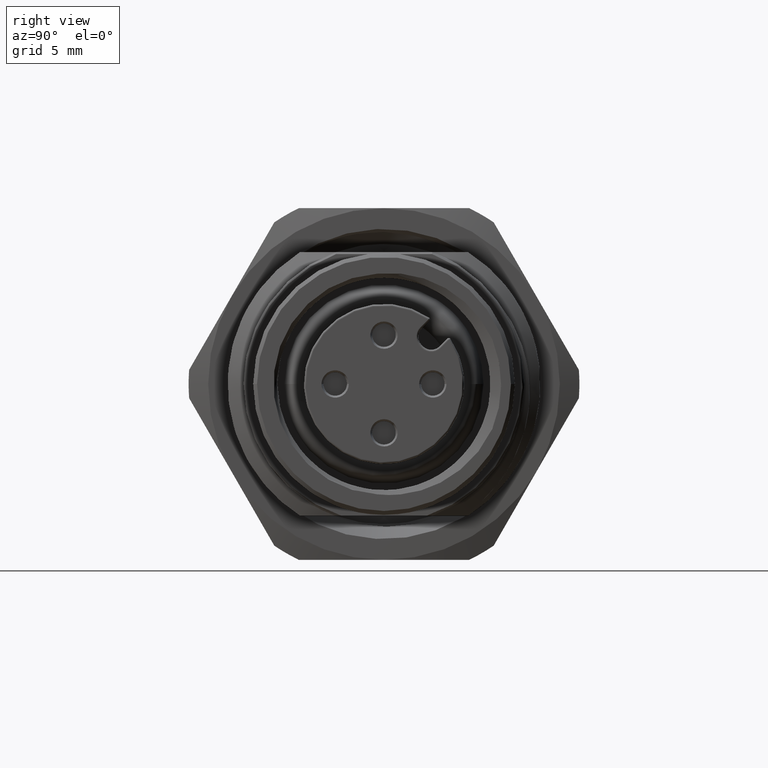
[diagram: clean part render]
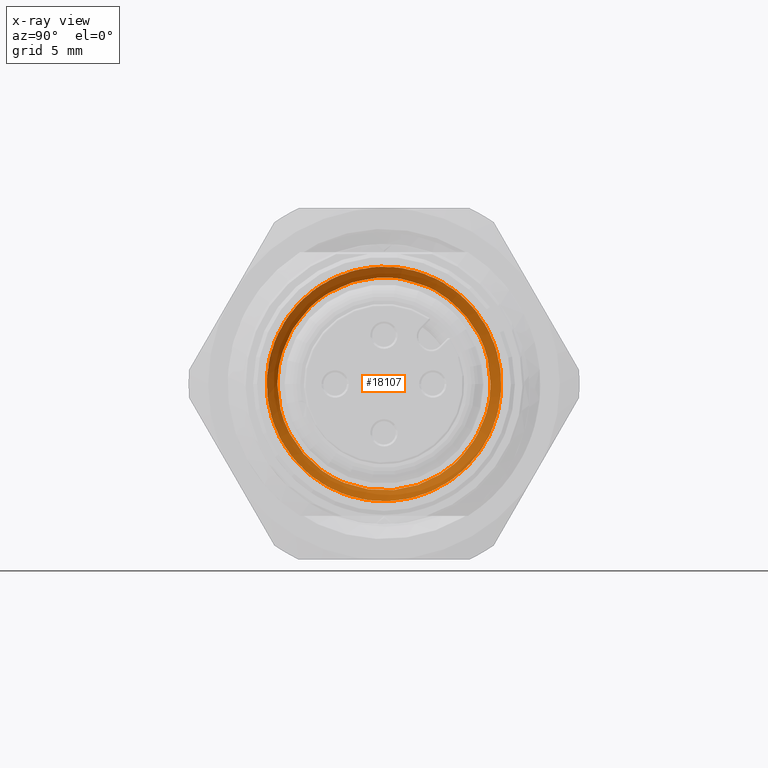
[diagram: x-ray — body ghosted, one internal face saturated and labeled with its STEP entity id]
A machine part, right view, then the same camera in x-ray: the body is ghosted and one INTERNAL B-rep face — a face not visible from any outside direction — is saturated and labeled: STEP entity #18107.
In plain terms, the highlighted face is a freeform B-spline surface patch.
Its self-contained STEP definition (entity closure, byte-faithful):
#5751=CARTESIAN_POINT('',(2.314018473593E-1,4.299110963220E0,3.363460593117E0));
#6500=CARTESIAN_POINT('',(2.314018473593E-1,4.299110963220E0,3.363460593117E0));
#6501=CARTESIAN_POINT('',(2.399415435808E-1,4.113948233641E0,3.600132421433E0));
#6502=CARTESIAN_POINT('',(2.568822415037E-1,3.704433105343E0,4.042842241084E0));
#6503=CARTESIAN_POINT('',(2.832021900221E-1,2.989275876292E0,4.596919117338E0));
#6504=CARTESIAN_POINT('',(3.111253487108E-1,2.192725604946E0,5.025870741599E0));
#6505=CARTESIAN_POINT('',(3.371518437403E-1,1.336512042359E0,5.318003989528E0));
#6506=CARTESIAN_POINT('',(3.617090569657E-1,4.438845492827E-1,
5.465380876023E0));
#6507=CARTESIAN_POINT('',(3.886290644774E-1,-4.607812755540E-1,
5.463982946907E0));
#6508=CARTESIAN_POINT('',(4.162604369995E-1,-1.352989619232E0,
5.313840623553E0));
#6509=CARTESIAN_POINT('',(4.420264436002E-1,-2.208400482440E0,
5.019009486373E0));
#6510=CARTESIAN_POINT('',(4.666955837468E-1,-3.003668170396E0,
4.587530417308E0));
#6511=CARTESIAN_POINT('',(4.941329043843E-1,-3.717122549455E0,
4.031185973253E0));
#6512=CARTESIAN_POINT('',(5.214950369702E-1,-4.329412140562E0,
3.365064993342E0));
#6513=CARTESIAN_POINT('',(5.469437675698E-1,-4.823808253135E0,
2.607356859327E0));
#6514=CARTESIAN_POINT('',(5.717992400231E-1,-5.186871495662E0,
1.778706001205E0));
#6515=CARTESIAN_POINT('',(5.995825331082E-1,-5.408742572223E0,
9.016282632118E-1));
#6516=CARTESIAN_POINT('',(6.176129594944E-1,-5.4585E0,3.005517473396E-1));
#6517=CARTESIAN_POINT('',(6.263232151622E-1,-5.4585E0,4.197741849550E-14));
#6519=CARTESIAN_POINT('',(6.263232151622E-1,-5.4585E0,4.197741849550E-14));
#6520=CARTESIAN_POINT('',(6.350415649384E-1,-5.4585E0,-3.008310386150E-1));
#6521=CARTESIAN_POINT('',(6.518213066995E-1,-5.408645779762E0,
-9.025147996965E-1));
#6522=CARTESIAN_POINT('',(6.770851113987E-1,-5.186338113313E0,
-1.780413512747E0));
#6523=CARTESIAN_POINT('',(7.050728443859E-1,-4.822567283011E0,
-2.609757509389E0));
#6524=CARTESIAN_POINT('',(7.318455214257E-1,-4.327236121665E0,
-3.367942641362E0));
#6525=CARTESIAN_POINT('',(7.567678846666E-1,-3.713854843236E0,
-4.034262380539E0));
#6526=CARTESIAN_POINT('',(7.825356390063E-1,-2.999204079622E0,
-4.590507557990E0));
#6527=CARTESIAN_POINT('',(8.105475477199E-1,-2.202709411462E0,
-5.021562836829E0));
#6528=CARTESIAN_POINT('',(8.370017821161E-1,-1.346089358076E0,
-5.315643731238E0));
#6529=CARTESIAN_POINT('',(8.617285360058E-1,-4.527892133326E-1,
-5.464700257605E0));
#6530=CARTESIAN_POINT('',(8.880650947182E-1,4.527814001953E-1,
-5.464701536691E0));
#6531=CARTESIAN_POINT('',(9.159682444173E-1,1.346095411606E0,
-5.315642629333E0));
#6532=CARTESIAN_POINT('',(9.421033704828E-1,2.202714763404E0,
-5.021560456791E0));
#6533=CARTESIAN_POINT('',(9.667340234165E-1,2.999209336658E0,
-4.590503828165E0));
#6534=CARTESIAN_POINT('',(9.936403384284E-1,3.713858761136E0,
-4.034259884743E0));
#6535=CARTESIAN_POINT('',(1.021336611502E0,4.327255284938E0,-3.367919446456E0));
#6536=CARTESIAN_POINT('',(1.047153465017E0,4.822576351452E0,-2.609737612863E0));
#6537=CARTESIAN_POINT('',(1.071816973414E0,5.186335830157E0,-1.780418070597E0));
#6538=CARTESIAN_POINT('',(1.099221454757E0,5.408642926617E0,
-9.025249629757E-1));
#6539=CARTESIAN_POINT('',(1.117512057230E0,5.4585E0,-3.008533037392E-1));
#6540=CARTESIAN_POINT('',(1.126326454072E0,5.4585E0,-8.638553125589E-14));
#6542=CARTESIAN_POINT('',(1.126326454072E0,5.4585E0,-8.638553125589E-14));
#6543=CARTESIAN_POINT('',(1.135140164458E0,5.4585E0,3.008298736200E-1));
#6544=CARTESIAN_POINT('',(1.152154262757E0,5.408646565921E0,9.025056347282E-1));
#6545=CARTESIAN_POINT('',(1.177005608450E0,5.186344621432E0,1.780391845279E0));
#6546=CARTESIAN_POINT('',(1.204789229972E0,4.822584943173E0,2.609723776864E0));
#6547=CARTESIAN_POINT('',(1.231903397534E0,4.327262802962E0,3.367907370412E0));
#6548=CARTESIAN_POINT('',(1.257110534076E0,3.713895893231E0,4.034224638803E0));
#6549=CARTESIAN_POINT('',(1.282335371286E0,2.999239513092E0,4.590485452862E0));
#6550=CARTESIAN_POINT('',(1.310317505703E0,2.202741542077E0,5.021548584082E0));
#6551=CARTESIAN_POINT('',(1.337116051631E0,1.346134080990E0,5.315631309767E0));
#6552=CARTESIAN_POINT('',(1.362056513351E0,4.528446397938E-1,5.464696721412E0));
#6553=CARTESIAN_POINT('',(1.387780950051E0,-4.527639221013E-1,
5.464704577296E0));
#6554=CARTESIAN_POINT('',(1.415796540169E0,-1.346079283480E0,5.315645724543E0));
#6555=CARTESIAN_POINT('',(1.442275343946E0,-2.202680041766E0,5.021574590606E0));
#6556=CARTESIAN_POINT('',(1.467014444405E0,-2.999177653180E0,4.590526092169E0));
#6557=CARTESIAN_POINT('',(1.493307607540E0,-3.713855432449E0,4.034264355798E0));
#6558=CARTESIAN_POINT('',(1.521223802805E0,-4.327244703195E0,3.367930464150E0));
#6559=CARTESIAN_POINT('',(1.547380844906E0,-4.822557691971E0,2.609771705524E0));
#6560=CARTESIAN_POINT('',(1.572016445919E0,-5.186332404001E0,1.780434490598E0));
#6561=CARTESIAN_POINT('',(1.598869320739E0,-5.408645927263E0,
9.025107254377E-1));
#6562=CARTESIAN_POINT('',(1.617371235347E0,-5.4585E0,3.008473074785E-1));
#6563=CARTESIAN_POINT('',(1.626278846316E0,-5.4585E0,1.730135618651E-13));
#6565=CARTESIAN_POINT('',(1.626278846316E0,-5.4585E0,1.730135618651E-13));
#6566=CARTESIAN_POINT('',(1.635185827192E0,-5.4585E0,-3.008260266503E-1));
#6567=CARTESIAN_POINT('',(1.652440027080E0,-5.408648706127E0,
-9.024930999653E-1));
#6568=CARTESIAN_POINT('',(1.677083940846E0,-5.186345552961E0,
-1.780391013172E0));
#6569=CARTESIAN_POINT('',(1.704459351017E0,-4.822584148334E0,
-2.609724866646E0));
#6570=CARTESIAN_POINT('',(1.731903330144E0,-4.327266273076E0,
-3.367901584693E0));
#6571=CARTESIAN_POINT('',(1.757434448730E0,-3.713907768072E0,
-4.034214621364E0));
#6572=CARTESIAN_POINT('',(1.782269748999E0,-2.999230227239E0,
-4.590492934390E0));
#6573=CARTESIAN_POINT('',(1.810030942195E0,-2.202726208146E0,
-5.021555203353E0));
#6574=CARTESIAN_POINT('',(1.837170985558E0,-1.346127310887E0,
-5.315631299445E0));
#6575=CARTESIAN_POINT('',(1.862399837904E0,-4.528611912973E-1,
-5.464696692976E0));
#6576=CARTESIAN_POINT('',(1.887592006125E0,4.528264672293E-1,
-5.464704959019E0));
#6577=CARTESIAN_POINT('',(1.915567926926E0,1.346226801649E0,-5.315612644214E0));
#6578=CARTESIAN_POINT('',(1.942392612240E0,2.202875649209E0,-5.021491722145E0));
#6579=CARTESIAN_POINT('',(1.967352944964E0,2.999384843104E0,-4.590391823448E0));
#6580=CARTESIAN_POINT('',(1.993036550243E0,3.714028304401E0,-4.034102057350E0));
#6581=CARTESIAN_POINT('',(2.021053069219E0,4.327343479303E0,-3.367795652634E0));
#6582=CARTESIAN_POINT('',(2.047551725395E0,4.822599637929E0,-2.609689577100E0));
#6583=CARTESIAN_POINT('',(2.072306298413E0,5.186364662436E0,-1.780345621371E0));
#6584=CARTESIAN_POINT('',(2.098539840688E0,5.408661787367E0,
-9.024040573192E-1));
#6585=CARTESIAN_POINT('',(2.117190756462E0,5.4585E0,-3.008047722762E-1));
#6586=CARTESIAN_POINT('',(2.126183223101E0,5.4585E0,-3.077446286570E-14));
#6588=CARTESIAN_POINT('',(2.126183223101E0,5.4585E0,-3.077446286570E-14));
#6589=CARTESIAN_POINT('',(2.135176310042E0,5.4585E0,3.008255218801E-1));
#6590=CARTESIAN_POINT('',(2.152667283535E0,5.408649486516E0,9.024879017912E-1));
#6591=CARTESIAN_POINT('',(2.177289601144E0,5.186346076165E0,1.780390459307E0));
#6592=CARTESIAN_POINT('',(2.204112231468E0,4.822583683401E0,2.609725264893E0));
#6593=CARTESIAN_POINT('',(2.231843791560E0,4.327269763217E0,3.367896565861E0));
#6594=CARTESIAN_POINT('',(2.257711298809E0,3.713911327632E0,4.034212384985E0));
#6595=CARTESIAN_POINT('',(2.282360603867E0,2.999218840785E0,4.590501060348E0));
#6596=CARTESIAN_POINT('',(2.309698557222E0,2.202715836678E0,5.021559144079E0));
#6597=CARTESIAN_POINT('',(2.337167051610E0,1.346124709389E0,5.315631744334E0));
#6598=CARTESIAN_POINT('',(2.362721631833E0,4.528533706512E-1,5.464698214897E0));
#6599=CARTESIAN_POINT('',(2.387537811518E0,-4.528437314308E-1,
5.464702664970E0));
#6600=CARTESIAN_POINT('',(2.415276302054E0,-1.346207659638E0,5.315615514137E0));
#6601=CARTESIAN_POINT('',(2.442442009132E0,-2.202840179524E0,5.021506538537E0));
#6602=CARTESIAN_POINT('',(2.467695279057E0,-2.999353537300E0,4.590414058550E0));
#6603=CARTESIAN_POINT('',(2.492853969839E0,-3.714027177085E0,4.034104033612E0));
#6604=CARTESIAN_POINT('',(2.520815259335E0,-4.327338577820E0,3.367802998370E0));
#6605=CARTESIAN_POINT('',(2.547659195168E0,-4.822612638057E0,2.609668154282E0));
#6606=CARTESIAN_POINT('',(2.572640595207E0,-5.186368438311E0,1.780329951297E0));
#6607=CARTESIAN_POINT('',(2.598267303288E0,-5.408659835234E0,
9.024119773690E-1));
#6608=CARTESIAN_POINT('',(2.616978460312E0,-5.4585E0,3.008089518522E-1));
#6609=CARTESIAN_POINT('',(2.626044792221E0,-5.4585E0,6.702876305105E-14));
#6611=CARTESIAN_POINT('',(2.626044792221E0,-5.4585E0,6.702876305105E-14));
#6612=CARTESIAN_POINT('',(2.635111724980E0,-5.4585E0,-3.008288872806E-1));
#6613=CARTESIAN_POINT('',(2.652830864234E0,-5.408648902160E0,
-9.024914030765E-1));
#6614=CARTESIAN_POINT('',(2.677581223294E0,-5.186344412082E0,
-1.780395386736E0));
#6615=CARTESIAN_POINT('',(2.703785178350E0,-4.822582817690E0,
-2.609725668126E0));
#6616=CARTESIAN_POINT('',(2.731721898733E0,-4.327274522635E0,
-3.367890704622E0));
#6617=CARTESIAN_POINT('',(2.757931771248E0,-3.713906758434E0,
-4.034217949088E0));
#6618=CARTESIAN_POINT('',(2.782575173801E0,-2.999205036527E0,
-4.590509817499E0));
#6619=CARTESIAN_POINT('',(2.809351393923E0,-2.202712977313E0,
-5.021559480997E0));
#6620=CARTESIAN_POINT('',(2.837103093801E0,-1.346127415490E0,
-5.315631524792E0));
#6621=CARTESIAN_POINT('',(2.862994975190E0,-4.528390234448E-1,
-5.464700372366E0));
#6622=CARTESIAN_POINT('',(2.887639151047E0,4.528603582890E-1,
-5.464700163742E0));
#6623=CARTESIAN_POINT('',(2.914940908647E0,1.346195097570E0,-5.315617702262E0));
#6624=CARTESIAN_POINT('',(2.942433174173E0,2.202835105870E0,-5.021510086966E0));
#6625=CARTESIAN_POINT('',(2.968013796421E0,2.999373851465E0,-4.590403178862E0));
#6626=CARTESIAN_POINT('',(2.992811626549E0,3.714066887226E0,-4.034068279685E0));
#6627=CARTESIAN_POINT('',(3.020524043572E0,4.327370847175E0,-3.367762243795E0));
#6628=CARTESIAN_POINT('',(3.047712996027E0,4.822647840138E0,-2.609604814929E0));
#6629=CARTESIAN_POINT('',(3.072989594689E0,5.186385861411E0,-1.780272015871E0));
#6630=CARTESIAN_POINT('',(3.098099070280E0,5.408659344853E0,
-9.024029081982E-1));
#6631=CARTESIAN_POINT('',(3.116739783960E0,5.4585E0,-3.008059781646E-1));
#6632=CARTESIAN_POINT('',(3.125858159524E0,5.4585E0,-6.482485997126E-14));
#6634=CARTESIAN_POINT('',(3.125858159524E0,5.4585E0,-6.482485997126E-14));
#6635=CARTESIAN_POINT('',(3.134963310620E0,5.4585E0,3.003697163498E-1));
#6636=CARTESIAN_POINT('',(3.152862311457E0,5.408737009300E0,9.010938493409E-1));
#6637=CARTESIAN_POINT('',(3.177793189876E0,5.187569565640E0,1.776777093264E0));
#6638=CARTESIAN_POINT('',(3.203403073856E0,4.824313735286E0,2.606001687221E0));
#6639=CARTESIAN_POINT('',(3.231280940171E0,4.333422263341E0,3.359956953074E0));
#6640=CARTESIAN_POINT('',(3.258184004371E0,3.714764994630E0,4.034705558905E0));
#6641=CARTESIAN_POINT('',(3.283363285904E0,2.983840736264E0,4.601816243161E0));
#6642=CARTESIAN_POINT('',(3.310193265970E0,2.172824334952E0,5.034753676696E0));
#6643=CARTESIAN_POINT('',(3.328047861566E0,1.603186330449E0,5.226506396009E0));
#6644=CARTESIAN_POINT('',(3.336882138739E0,1.312205076684E0,5.298427778212E0));
#6646=CARTESIAN_POINT('',(3.649844416177E0,1.443597531679E0,5.823139669250E0));
#6647=CARTESIAN_POINT('',(3.645515076610E0,1.602119362358E0,5.784053877768E0));
#6648=CARTESIAN_POINT('',(3.636444652774E0,1.915852956893E0,5.692441405176E0));
#6649=CARTESIAN_POINT('',(3.623028656873E0,2.373855579219E0,5.517607207459E0));
#6650=CARTESIAN_POINT('',(3.609727676520E0,2.815995687721E0,5.305721866048E0));
#6651=CARTESIAN_POINT('',(3.597082965221E0,3.239253033133E0,5.058245088020E0));
#6652=CARTESIAN_POINT('',(3.584601781363E0,3.640799072163E0,4.776943034761E0));
#6653=CARTESIAN_POINT('',(3.572045615719E0,4.018116713971E0,4.463934170881E0));
#6654=CARTESIAN_POINT('',(3.559169125787E0,4.368714757875E0,4.121294708026E0));
#6655=CARTESIAN_POINT('',(3.545977719141E0,4.690385936712E0,3.751371999042E0));
#6656=CARTESIAN_POINT('',(3.532498792723E0,4.980901687420E0,3.356499579328E0));
#6657=CARTESIAN_POINT('',(3.518994132026E0,5.238331338400E0,2.939269817220E0));
#6658=CARTESIAN_POINT('',(3.505791777786E0,5.460675419903E0,2.502297058061E0));
#6659=CARTESIAN_POINT('',(3.493201137227E0,5.646379299168E0,2.048528783965E0));
#6660=CARTESIAN_POINT('',(3.480695448506E0,5.794336695809E0,1.581117525134E0));
#6661=CARTESIAN_POINT('',(3.468077361012E0,5.903803571349E0,1.103249068824E0));
#6662=CARTESIAN_POINT('',(3.455126815661E0,5.974053880410E0,6.180835294852E-1));
#6663=CARTESIAN_POINT('',(3.441877146624E0,6.004741660849E0,1.288208799460E-1));
#6664=CARTESIAN_POINT('',(3.428387059358E0,5.995498744640E0,
-3.613269601963E-1));
#6665=CARTESIAN_POINT('',(3.414931473377E0,5.946356324391E0,
-8.491235753994E-1));
#6666=CARTESIAN_POINT('',(3.401901174782E0,5.857283960349E0,-1.331258127574E0));
#6667=CARTESIAN_POINT('',(3.389383128748E0,5.728964210174E0,-1.804461017647E0));
#6668=CARTESIAN_POINT('',(3.376868689964E0,5.562425085141E0,-2.265570472765E0));
#6669=CARTESIAN_POINT('',(3.364188830082E0,5.358989523642E0,-2.711607631730E0));
#6670=CARTESIAN_POINT('',(3.351156095188E0,5.119985355855E0,-3.139619310536E0));
#6671=CARTESIAN_POINT('',(3.337834878251E0,4.847061153401E0,-3.546845470555E0));
#6672=CARTESIAN_POINT('',(3.324318440880E0,4.541864920155E0,-3.930498608898E0));
#6673=CARTESIAN_POINT('',(3.310908914072E0,4.206374967181E0,-4.288010616422E0));
#6674=CARTESIAN_POINT('',(3.298029978754E0,3.842580426151E0,-4.616711304543E0));
#6675=CARTESIAN_POINT('',(3.285543959387E0,3.453097373758E0,-4.914510588184E0));
#6676=CARTESIAN_POINT('',(3.273002945212E0,3.040633171472E0,-5.179509361857E0));
#6677=CARTESIAN_POINT('',(3.260253783132E0,2.608034662952E0,-5.410137728072E0));
#6678=CARTESIAN_POINT('',(3.247143657445E0,2.158140811947E0,-5.604845419288E0));
#6679=CARTESIAN_POINT('',(3.233766172762E0,1.693927948826E0,-5.762421506962E0));
#6680=CARTESIAN_POINT('',(3.220243053649E0,1.218399784670E0,-5.881641042601E0));
#6681=CARTESIAN_POINT('',(3.206918818046E0,7.346877542265E-1,
-5.961635079077E0));
#6682=CARTESIAN_POINT('',(3.194179884423E0,2.460152957695E-1,
-6.001516741469E0));
#6683=CARTESIAN_POINT('',(3.181707976361E0,-2.442653936162E-1,
-6.001315777877E0));
#6684=CARTESIAN_POINT('',(3.169129551605E0,-7.328657217978E-1,
-5.961133706520E0));
#6685=CARTESIAN_POINT('',(3.156305175233E0,-1.216576063105E0,
-5.881438615245E0));
#6686=CARTESIAN_POINT('',(3.143118472085E0,-1.692200084502E0,
-5.762709240320E0));
#6687=CARTESIAN_POINT('',(3.129693576257E0,-2.156631882112E0,
-5.605768138097E0));
#6688=CARTESIAN_POINT('',(3.116174883382E0,-2.606734531621E0,
-5.411462782142E0));
#6689=CARTESIAN_POINT('',(3.102971878859E0,-3.039465667909E0,
-5.180968950583E0));
#6690=CARTESIAN_POINT('',(3.090339362048E0,-3.451752655522E0,
-4.915622475540E0));
#6691=CARTESIAN_POINT('',(3.077867364714E0,-3.840986140290E0,
-4.617518073888E0));
#6692=CARTESIAN_POINT('',(3.065240437315E0,-4.204610177993E0,
-4.288707417688E0));
#6693=CARTESIAN_POINT('',(3.052337634976E0,-4.540352419663E0,
-3.931494570299E0));
#6694=CARTESIAN_POINT('',(3.039078365951E0,-4.845956665883E0,
-3.548191561817E0));
#6695=CARTESIAN_POINT('',(3.025617283498E0,-5.119434681473E0,
-3.141323601371E0));
#6696=CARTESIAN_POINT('',(3.012120070923E0,-5.358802932360E0,
-2.713471860984E0));
#6697=CARTESIAN_POINT('',(2.999064553601E0,-5.562311685074E0,
-2.267407011040E0));
#6698=CARTESIAN_POINT('',(2.986503593985E0,-5.728442454768E0,
-1.806120147814E0));
#6699=CARTESIAN_POINT('',(2.974019454311E0,-5.856399361166E0,
-1.332844412137E0));
#6700=CARTESIAN_POINT('',(2.961334196216E0,-5.945389148205E0,
-8.507510460698E-1));
#6701=CARTESIAN_POINT('',(2.948351232805E0,-5.994985651782E0,
-3.630402827918E-1));
#6702=CARTESIAN_POINT('',(2.935025343253E0,-6.004789865332E0,
1.270823939565E-1));
#6703=CARTESIAN_POINT('',(2.921539517888E0,-5.974731038839E0,
6.164017243940E-1));
#6704=CARTESIAN_POINT('',(2.908087627482E0,-5.904795068275E0,1.101655135665E0));
#6705=CARTESIAN_POINT('',(2.895187526788E0,-5.795246259198E0,1.579559909763E0));
#6706=CARTESIAN_POINT('',(2.882669718207E0,-5.646833612697E0,2.046842311060E0));
#6707=CARTESIAN_POINT('',(2.870161603180E0,-5.460851744932E0,2.500458641694E0));
#6708=CARTESIAN_POINT('',(2.857410257931E0,-5.238591087493E0,2.937411912610E0));
#6709=CARTESIAN_POINT('',(2.844346906535E0,-4.981631791719E0,3.354895013449E0));
#6710=CARTESIAN_POINT('',(2.830962353763E0,-4.691595293774E0,3.750113011557E0));
#6711=CARTESIAN_POINT('',(2.817463292601E0,-4.370361062796E0,4.120452750772E0));
#6712=CARTESIAN_POINT('',(2.804087074029E0,-4.019894561913E0,4.463297785296E0));
#6713=CARTESIAN_POINT('',(2.791331540721E0,-3.642412433328E0,4.776192566647E0));
#6714=CARTESIAN_POINT('',(2.778834879847E0,-3.240577927588E0,5.057086740138E0));
#6715=CARTESIAN_POINT('',(2.766291026228E0,-2.817226524222E0,5.304321294579E0));
#6716=CARTESIAN_POINT('',(2.753467869427E0,-2.375199488409E0,5.516301132256E0));
#6717=CARTESIAN_POINT('',(2.740325446919E0,-1.917440840460E0,5.691734261823E0));
#6718=CARTESIAN_POINT('',(2.726892264259E0,-1.446934255619E0,5.829374650986E0));
#6719=CARTESIAN_POINT('',(2.713391770915E0,-9.667572229475E-1,
5.928267704147E0));
#6720=CARTESIAN_POINT('',(2.700127796248E0,-4.800663214371E-1,
5.987500408822E0));
#6721=CARTESIAN_POINT('',(2.687487719868E0,9.865715144094E-3,6.006521068512E0));
#6722=CARTESIAN_POINT('',(2.674996702286E0,4.996815624363E-1,5.985398291471E0));
#6723=CARTESIAN_POINT('',(2.662405542368E0,9.861344318334E-1,5.924493679984E0));
#6724=CARTESIAN_POINT('',(2.649506844600E0,1.466002541515E0,5.824263352125E0));
#6725=CARTESIAN_POINT('',(2.636288399491E0,1.936160828682E0,5.685441864471E0));
#6726=CARTESIAN_POINT('',(2.622817821825E0,2.393476468255E0,5.508842266797E0));
#6727=CARTESIAN_POINT('',(2.609330885279E0,2.834914889304E0,5.295559562104E0));
#6728=CARTESIAN_POINT('',(2.596210638900E0,3.257386812210E0,5.046762341030E0));
#6729=CARTESIAN_POINT('',(2.583649791177E0,3.657999838650E0,4.764094497360E0));
#6730=CARTESIAN_POINT('',(2.571152474846E0,4.034155188469E0,4.449664284252E0));
#6731=CARTESIAN_POINT('',(2.558503478992E0,4.383482423929E0,4.105700825727E0));
#6732=CARTESIAN_POINT('',(2.545527245499E0,4.703698808310E0,3.734516170429E0));
#6733=CARTESIAN_POINT('',(2.532237865454E0,4.992749188506E0,3.338572454216E0));
#6734=CARTESIAN_POINT('',(2.518741390524E0,5.248628908076E0,2.920415632880E0));
#6735=CARTESIAN_POINT('',(2.505289555603E0,5.469571839955E0,2.482751876114E0));
#6736=CARTESIAN_POINT('',(2.492326661103E0,5.653807226514E0,2.028390363481E0));
#6737=CARTESIAN_POINT('',(2.479814464557E0,5.800147643306E0,1.560446681282E0));
#6738=CARTESIAN_POINT('',(2.467299131749E0,5.907805889766E0,1.082155310921E0));
#6739=CARTESIAN_POINT('',(2.454583750885E0,5.976233135285E0,5.967142186067E-1));
#6740=CARTESIAN_POINT('',(2.441529483264E0,6.005013327645E0,1.073408575394E-1));
#6741=CARTESIAN_POINT('',(2.428176363016E0,5.993982063333E0,
-3.827632256352E-1));
#6742=CARTESIAN_POINT('',(2.414665650305E0,5.943086186213E0,
-8.703538436008E-1));
#6743=CARTESIAN_POINT('',(2.401277153149E0,5.852538750810E0,-1.352198684848E0));
#6744=CARTESIAN_POINT('',(2.388466571605E0,5.722650200453E0,-1.824976060897E0));
#6745=CARTESIAN_POINT('',(2.375978921884E0,5.554480888838E0,-2.285518903024E0));
#6746=CARTESIAN_POINT('',(2.363433929889E0,5.349338873797E0,-2.730786970657E0));
#6747=CARTESIAN_POINT('',(2.350645675334E0,5.108711278297E0,-3.157904259596E0));
#6748=CARTESIAN_POINT('',(2.337514364085E0,4.834212132062E0,-3.564061610471E0));
#6749=CARTESIAN_POINT('',(2.324106793389E0,4.527632220882E0,-3.946599678927E0));
#6750=CARTESIAN_POINT('',(2.310593634253E0,4.190899684394E0,-4.302903709833E0));
#6751=CARTESIAN_POINT('',(2.297303308158E0,3.826124208029E0,-4.630500487902E0));
#6752=CARTESIAN_POINT('',(2.284621308157E0,3.435618667522E0,-4.926971065400E0));
#6753=CARTESIAN_POINT('',(2.272140678943E0,3.022191492158E0,-5.190508607875E0));
#6754=CARTESIAN_POINT('',(2.259554502675E0,2.588700999268E0,-5.419478170051E0));
#6755=CARTESIAN_POINT('',(2.246688937673E0,2.138061604374E0,-5.612483596551E0));
#6756=CARTESIAN_POINT('',(2.233483183980E0,1.673255161643E0,-5.768267192254E0));
#6757=CARTESIAN_POINT('',(2.220032078244E0,1.197311898312E0,-5.885775761440E0));
#6758=CARTESIAN_POINT('',(2.206530036924E0,7.133557919602E-1,
-5.964102398330E0));
#6759=CARTESIAN_POINT('',(2.193372958158E0,2.245693796970E-1,
-6.002510957556E0));
#6760=CARTESIAN_POINT('',(2.180783392033E0,-2.657192639429E-1,
-6.000593160014E0));
#6761=CARTESIAN_POINT('',(2.168297238311E0,-7.541941640338E-1,
-5.958642009928E0));
#6762=CARTESIAN_POINT('',(2.155658974392E0,-1.237601861167E0,
-5.877079455409E0));
#6763=CARTESIAN_POINT('',(2.142713528933E0,-1.712780497296E0,
-5.756542496342E0));
#6764=CARTESIAN_POINT('',(2.129437883137E0,-2.176597745417E0,
-5.597835041417E0));
#6765=CARTESIAN_POINT('',(2.115954595345E0,-2.625994597642E0,
-5.401934220463E0));
#6766=CARTESIAN_POINT('',(2.102483275380E0,-3.057933785762E0,
-5.170018547886E0));
#6767=CARTESIAN_POINT('',(2.089478585790E0,-3.469404846165E0,
-4.903402624751E0));
#6768=CARTESIAN_POINT('',(2.076949031280E0,-3.857584529596E0,
-4.603905655596E0));
#6769=CARTESIAN_POINT('',(2.064445544849E0,-4.220018000555E0,
-4.273749091286E0));
#6770=CARTESIAN_POINT('',(2.051746100608E0,-4.554380211427E0,
-3.915235326358E0));
#6771=CARTESIAN_POINT('',(2.038719761312E0,-4.858530257162E0,
-3.530768892484E0));
#6772=CARTESIAN_POINT('',(2.025380847769E0,-5.130462891684E0,
-3.122885344737E0));
#6773=CARTESIAN_POINT('',(2.011876931706E0,-5.368316541071E0,
-2.694206528363E0));
#6774=CARTESIAN_POINT('',(1.998462618642E0,-5.570385800562E0,
-2.247516134236E0));
#6775=CARTESIAN_POINT('',(1.985610851931E0,-5.735050399062E0,
-1.785692374655E0));
#6776=CARTESIAN_POINT('',(1.973115293745E0,-5.861303675679E0,
-1.311945553447E0));
#6777=CARTESIAN_POINT('',(1.960582757950E0,-5.948507785737E0,
-8.295030736084E-1));
#6778=CARTESIAN_POINT('',(1.947815065874E0,-5.996216134501E0,
-3.415999939709E-1));
#6779=CARTESIAN_POINT('',(1.934708333564E0,-6.004160615624E0,
1.485604587277E-1));
#6780=CARTESIAN_POINT('',(1.921314851144E0,-5.972280301054E0,
6.377462084471E-1));
#6781=CARTESIAN_POINT('',(1.907802025284E0,-5.900664544067E0,1.122738101386E0));
#6782=CARTESIAN_POINT('',(1.894477616737E0,-5.789634329458E0,1.600277948400E0));
#6783=CARTESIAN_POINT('',(1.881760631912E0,-5.639673310011E0,2.067084099050E0));
#6784=CARTESIAN_POINT('',(1.869279580982E0,-5.452037109361E0,2.520032351440E0));
#6785=CARTESIAN_POINT('',(1.856706407348E0,-5.228128119355E0,2.956167808714E0));
#6786=CARTESIAN_POINT('',(1.843865438049E0,-4.969555134287E0,3.372654901644E0));
#6787=CARTESIAN_POINT('',(1.830680379144E0,-4.678024498866E0,3.766774035890E0));
#6788=CARTESIAN_POINT('',(1.817242900033E0,-4.355444356019E0,4.135914398062E0));
#6789=CARTESIAN_POINT('',(1.803733694497E0,-4.003828329191E0,4.477556041800E0));
#6790=CARTESIAN_POINT('',(1.790536063731E0,-3.625398199584E0,4.789276534718E0));
#6791=CARTESIAN_POINT('',(1.777919589762E0,-3.222590186407E0,5.068811679725E0));
#6792=CARTESIAN_POINT('',(1.765439488892E0,-2.798323832633E0,5.314496721139E0));
#6793=CARTESIAN_POINT('',(1.752814454702E0,-2.355478149077E0,5.524809026082E0));
#6794=CARTESIAN_POINT('',(1.739897105027E0,-1.897047223384E0,5.698473630368E0));
#6795=CARTESIAN_POINT('',(1.726637671993E0,-1.426026479189E0,5.834341127777E0));
#6796=CARTESIAN_POINT('',(1.713167461080E0,-9.455167660947E-1,
5.931486892057E0));
#6797=CARTESIAN_POINT('',(1.699679482314E0,-4.586495360150E-1,
5.989111718612E0));
#6798=CARTESIAN_POINT('',(1.686633312668E0,3.132866070508E-2,6.006609456187E0));
#6799=CARTESIAN_POINT('',(1.674083065839E0,5.210922584494E-1,5.983774620885E0));
#6800=CARTESIAN_POINT('',(1.661592053183E0,1.007327702382E0,5.921068580362E0));
#6801=CARTESIAN_POINT('',(1.648905495338E0,1.486828047260E0,5.819002799425E0));
#6802=CARTESIAN_POINT('',(1.635910261008E0,1.956445005525E0,5.678375786056E0));
#6803=CARTESIAN_POINT('',(1.622582490099E0,2.413093705603E0,5.500067477137E0));
#6804=CARTESIAN_POINT('',(1.609091002416E0,2.853743798980E0,5.285219669945E0));
#6805=CARTESIAN_POINT('',(1.595648575756E0,3.275405786421E0,5.035081307567E0));
#6806=CARTESIAN_POINT('',(1.582759964712E0,3.675113413432E0,4.751140063884E0));
#6807=CARTESIAN_POINT('',(1.570248038532E0,4.050166726430E0,4.435357033890E0));
#6808=CARTESIAN_POINT('',(1.557734310792E0,4.398216263048E0,4.090085256952E0));
#6809=CARTESIAN_POINT('',(1.544978607747E0,4.717015378786E0,3.717660785002E0));
#6810=CARTESIAN_POINT('',(1.531905470751E0,5.004545279943E0,3.320620113368E0));
#6811=CARTESIAN_POINT('',(1.518517503836E0,5.258867368137E0,2.901520674654E0));
#6812=CARTESIAN_POINT('',(1.505016342502E0,5.478260918897E0,2.463109156624E0));
#6813=CARTESIAN_POINT('',(1.491650456635E0,5.661076949534E0,2.008187320993E0));
#6814=CARTESIAN_POINT('',(1.478906812809E0,5.805879411720E0,1.539761420257E0));
#6815=CARTESIAN_POINT('',(1.466411821496E0,5.911814433281E0,1.061060067257E0));
#6816=CARTESIAN_POINT('',(1.453863664486E0,5.978419542790E0,5.753552322332E-1));
#6817=CARTESIAN_POINT('',(1.441033261834E0,6.005312455823E0,8.586052121787E-2));
#6818=CARTESIAN_POINT('',(1.427883706858E0,5.992420438411E0,
-4.041886776036E-1));
#6819=CARTESIAN_POINT('',(1.414445725006E0,5.939729445697E0,
-8.915803508289E-1));
#6820=CARTESIAN_POINT('',(1.400946791219E0,5.847538082360E0,-1.373084196834E0));
#6821=CARTESIAN_POINT('',(1.387694324090E0,5.716196686042E0,-1.845452637545E0));
#6822=CARTESIAN_POINT('',(1.375065036262E0,5.546468219482E0,-2.305432978075E0));
#6823=CARTESIAN_POINT('',(1.362572028073E0,5.339686671620E0,-2.749968451437E0));
#6824=CARTESIAN_POINT('',(1.349977918066E0,5.097443775526E0,-3.176182409381E0));
#6825=CARTESIAN_POINT('',(1.337069273583E0,4.821369092064E0,-3.581283926036E0));
#6826=CARTESIAN_POINT('',(1.323846535982E0,4.513359183093E0,-3.962656409256E0));
#6827=CARTESIAN_POINT('',(1.310369827804E0,4.175334667241E0,-4.317719891799E0));
#6828=CARTESIAN_POINT('',(1.296888670979E0,3.809495810945E0,-4.644086072151E0));
#6829=CARTESIAN_POINT('',(1.283779630090E0,3.418071776022E0,-4.939341088998E0));
#6830=CARTESIAN_POINT('',(1.271228749131E0,3.003726594271E0,-5.201456293977E0));
#6831=CARTESIAN_POINT('',(1.258725875220E0,2.569368712790E0,-5.428826033272E0));
#6832=CARTESIAN_POINT('',(1.246075421766E0,2.117994115229E0,-5.620126111875E0));
#6833=CARTESIAN_POINT('',(1.233086709904E0,1.652579936297E0,-5.774110262330E0));
#6834=CARTESIAN_POINT('',(1.219796047828E0,1.176215995552E0,-5.889842938032E0));
#6835=CARTESIAN_POINT('',(1.206292169155E0,6.919930629610E-1,
-5.966414944807E0));
#6836=CARTESIAN_POINT('',(1.192850963300E0,2.031131541459E-1,
-6.003259758390E0));
#6837=CARTESIAN_POINT('',(1.179897240846E0,-2.871727824317E-1,
-5.999776575119E0));
#6838=CARTESIAN_POINT('',(1.167394805954E0,-7.755115005994E-1,
-5.956112405136E0));
#6839=CARTESIAN_POINT('',(1.154870441137E0,-1.258631136265E0,
-5.872729242514E0));
#6840=CARTESIAN_POINT('',(1.142155273891E0,-1.733354934988E0,
-5.750388438283E0));
#6841=CARTESIAN_POINT('',(1.129086208988E0,-2.196558612851E0,
-5.589883856788E0));
#6842=CARTESIAN_POINT('',(1.115734955049E0,-2.645217393745E0,
-5.392337899886E0));
#6843=CARTESIAN_POINT('',(1.102215603752E0,-3.076310020056E0,
-5.158886459308E0));
#6844=CARTESIAN_POINT('',(1.088843098162E0,-3.486936939676E0,
-4.891015604722E0));
#6845=CARTESIAN_POINT('',(1.076037813786E0,-3.874133925708E0,
-4.590228475307E0));
#6846=CARTESIAN_POINT('',(1.063560175445E0,-4.235405582490E0,
-4.258780058489E0));
#6847=CARTESIAN_POINT('',(1.051002671993E0,-4.568416115268E0,
-3.898981401950E0));
#6848=CARTESIAN_POINT('',(1.038216376710E0,-4.871107280202E0,
-3.513360057183E0));
#6849=CARTESIAN_POINT('',(1.025068177032E0,-5.141461996739E0,
-3.104426650056E0));
#6850=CARTESIAN_POINT('',(1.011665790844E0,-5.377748855281E0,
-2.674902608316E0));
#6851=CARTESIAN_POINT('',(9.981429713361E-1,-5.578238878196E0,
-2.227520932305E0));
#6852=CARTESIAN_POINT('',(9.848746239072E-1,-5.741503646241E0,
-1.765220586854E0));
#6853=CARTESIAN_POINT('',(9.721925032961E-1,-5.866139121915E0,
-1.291026790435E0));
#6854=CARTESIAN_POINT('',(9.597227273377E-1,-5.951619413910E0,
-8.082617209751E-1));
#6855=CARTESIAN_POINT('',(9.471206458370E-1,-5.997454567703E0,
-3.201591523085E-1));
#6856=CARTESIAN_POINT('',(9.342587576820E-1,-6.003540754537E0,
1.700298431564E-1));
#6857=CARTESIAN_POINT('',(9.210341476664E-1,-5.969776977218E0,
6.590881056968E-1));
#6858=CARTESIAN_POINT('',(9.075913943471E-1,-5.896426476317E0,
1.143800540030E0));
#6859=CARTESIAN_POINT('',(8.940792578196E-1,-5.783762060509E0,
1.620938174097E0));
#6860=CARTESIAN_POINT('',(8.809493623194E-1,-5.632400740153E0,
2.087278778994E0));
#6861=CARTESIAN_POINT('',(8.683550050826E-1,-5.443163390775E0,
2.539583636405E0));
#6862=CARTESIAN_POINT('',(8.558817959411E-1,-5.217674500268E0,
2.974919871198E0));
#6863=CARTESIAN_POINT('',(8.432258168460E-1,-4.957480048674E0,
3.390416920861E0));
#6864=CARTESIAN_POINT('',(8.302869528198E-1,-4.664460679242E0,
3.783429859901E0));
#6865=CARTESIAN_POINT('',(8.169913928283E-1,-4.340472332796E0,
4.151329285416E0));
#6866=CARTESIAN_POINT('',(8.035189947374E-1,-3.987666685086E0,
4.491710306177E0));
#6867=CARTESIAN_POINT('',(7.900357950492E-1,-3.608216213219E0,
4.802158574764E0));
#6868=CARTESIAN_POINT('',(7.770570135699E-1,-3.204559208202E0,
5.080456977168E0));
#6869=CARTESIAN_POINT('',(7.645119460718E-1,-2.779395069997E0,
5.324630538232E0));
#6870=CARTESIAN_POINT('',(7.520157461330E-1,-2.335774736462E0,
5.533337030915E0));
#6871=CARTESIAN_POINT('',(7.392902581948E-1,-1.876656323816E0,
5.705221598496E0));
#6872=CARTESIAN_POINT('',(7.262690172008E-1,-1.405129066954E0,
5.839314054342E0));
#6873=CARTESIAN_POINT('',(7.129093958760E-1,-9.242594298098E-1,
5.934631823570E0));
#6874=CARTESIAN_POINT('',(6.994247851600E-1,-4.372168740543E-1,
5.990555894906E0));
#6875=CARTESIAN_POINT('',(6.860112465606E-1,5.279962947959E-2,
6.006466646604E0));
#6876=CARTESIAN_POINT('',(6.732055083891E-1,5.424911859673E-1,
5.982075895808E0));
#6877=CARTESIAN_POINT('',(6.607136103036E-1,1.028514746069E0,5.917583194672E0));
#6878=CARTESIAN_POINT('',(6.482104533137E-1,1.507646883426E0,5.813744542293E0));
#6879=CARTESIAN_POINT('',(6.354295174899E-1,1.976717885949E0,5.671271274295E0));
#6880=CARTESIAN_POINT('',(6.223345854230E-1,2.432687501753E0,5.491253743611E0));
#6881=CARTESIAN_POINT('',(6.089107849885E-1,2.872515249593E0,5.274756842993E0));
#6882=CARTESIAN_POINT('',(5.953972017633E-1,3.293304436304E0,5.023205247504E0));
#6883=CARTESIAN_POINT('',(5.820324172050E-1,3.692106538344E0,4.738022971541E0));
#6884=CARTESIAN_POINT('',(5.693210180441E-1,4.066168536149E0,4.421041990491E0));
#6885=CARTESIAN_POINT('',(5.567378428241E-1,4.412894431113E0,4.074433385514E0));
#6886=CARTESIAN_POINT('',(5.484808424920E-1,4.624705027650E0,3.825488571207E0));
#6887=CARTESIAN_POINT('',(5.441515229042E-1,4.725148673292E0,3.696770302334E0));
#6889=DIRECTION('',(-5.001502597068E-1,-6.820005490510E-1,-5.335962601157E-1));
#6890=VECTOR('',#6889,6.240596784861E-1);
#6891=CARTESIAN_POINT('',(5.435254576267E-1,4.724720006588E0,3.696456503646E0));
#6892=LINE('',#6891,#6890);
#6923=DIRECTION('',(-5.000056972398E-1,-2.103339253463E-1,-8.400916274884E-1));
#6924=VECTOR('',#6923,6.244120383288E-1);
#6925=CARTESIAN_POINT('',(3.649091715329E0,1.443540111739E0,5.822991103715E0));
#6926=LINE('',#6925,#6924);
#9887=CARTESIAN_POINT('',(5.435254576267E-1,4.724720006588E0,3.696456503646E0));
#9889=VERTEX_POINT('',#9887);
#9892=VERTEX_POINT('',#6646);
#10672=VERTEX_POINT('',#5751);
#10673=VERTEX_POINT('',#6517);
#10674=VERTEX_POINT('',#6542);
#10675=VERTEX_POINT('',#6563);
#10676=VERTEX_POINT('',#6588);
#10677=VERTEX_POINT('',#6609);
#10678=VERTEX_POINT('',#6634);
#10679=VERTEX_POINT('',#6644);
#17945=CARTESIAN_POINT('',(5.465590169091E-1,5.203647172273E0,
3.065897814795E0));
#17946=CARTESIAN_POINT('',(4.265477415067E-1,5.024627870753E0,
2.960422776390E0));
#17947=CARTESIAN_POINT('',(3.065364661043E-1,4.845608569232E0,
2.854947737986E0));
#17948=CARTESIAN_POINT('',(1.865251907019E-1,4.666589267712E0,
2.749472699582E0));
#17949=CARTESIAN_POINT('',(5.535293983650E-1,5.069064973605E0,
3.293813393852E0));
#17950=CARTESIAN_POINT('',(4.335181229626E-1,4.894675657632E0,
3.180497453400E0));
#17951=CARTESIAN_POINT('',(3.135068475602E-1,4.720286341659E0,
3.067181512948E0));
#17952=CARTESIAN_POINT('',(1.934955721578E-1,4.545897025686E0,
2.953865572496E0));
#17953=CARTESIAN_POINT('',(5.734470666397E-1,4.642361531420E0,
3.920224275496E0));
#17954=CARTESIAN_POINT('',(4.534357912373E-1,4.482651948651E0,
3.785358134812E0));
#17955=CARTESIAN_POINT('',(3.334245158349E-1,4.322942365882E0,
3.650491994129E0));
#17956=CARTESIAN_POINT('',(2.134132404326E-1,4.163232783113E0,
3.515625853446E0));
#17957=CARTESIAN_POINT('',(6.270094112687E-1,3.199331585594E0,
5.371942316479E0));
#17958=CARTESIAN_POINT('',(5.069981358663E-1,3.089266070614E0,
5.187133214427E0));
#17959=CARTESIAN_POINT('',(3.869868604639E-1,2.979200555635E0,
5.002324112375E0));
#17960=CARTESIAN_POINT('',(2.669755850615E-1,2.869135040656E0,
4.817515010323E0));
#17961=CARTESIAN_POINT('',(7.072460507961E-1,1.859711742730E-1,
6.458370904048E0));
#17962=CARTESIAN_POINT('',(5.872347753937E-1,1.795732712985E-1,
6.236185769291E0));
#17963=CARTESIAN_POINT('',(4.672234999913E-1,1.731753683240E-1,
6.014000634533E0));
#17964=CARTESIAN_POINT('',(3.472122245890E-1,1.667774653495E-1,
5.791815499776E0));
#17965=CARTESIAN_POINT('',(8.081800798590E-1,-3.676794465031E0,
5.312625079476E0));
#17966=CARTESIAN_POINT('',(6.881688044566E-1,-3.550302957215E0,
5.129856648127E0));
#17967=CARTESIAN_POINT('',(5.681575290542E-1,-3.423811449399E0,
4.947088216779E0));
#17968=CARTESIAN_POINT('',(4.481462536518E-1,-3.297319941584E0,
4.764319785430E0));
#17969=CARTESIAN_POINT('',(9.091141089219E-1,-6.109741751979E0,
2.101053940194E0));
#17970=CARTESIAN_POINT('',(7.891028335195E-1,-5.899550387212E0,
2.028772097021E0));
#17971=CARTESIAN_POINT('',(6.690915581171E-1,-5.689359022444E0,
1.956490253848E0));
#17972=CARTESIAN_POINT('',(5.490802827147E-1,-5.479167657677E0,
1.884208410675E0));
#17973=CARTESIAN_POINT('',(1.010048137984E0,-6.166637674639E0,
-1.927660194305E0));
#17974=CARTESIAN_POINT('',(8.900368625820E-1,-5.954488938820E0,
-1.861343557123E0));
#17975=CARTESIAN_POINT('',(7.700255871798E-1,-5.742340203001E0,
-1.795026919941E0));
#17976=CARTESIAN_POINT('',(6.500143117776E-1,-5.530191467182E0,
-1.728710282758E0));
#17977=CARTESIAN_POINT('',(1.110982167047E0,-3.825376482221E0,
-5.206705442919E0));
#17978=CARTESIAN_POINT('',(9.909708916450E-1,-3.693773357867E0,
-5.027580928756E0));
#17979=CARTESIAN_POINT('',(8.709596162427E-1,-3.562170233513E0,
-4.848456414593E0));
#17980=CARTESIAN_POINT('',(7.509483408404E-1,-3.430567109159E0,
-4.669331900430E0));
#17981=CARTESIAN_POINT('',(1.211916196110E0,3.547556310584E-3,
-6.460904188360E0));
#17982=CARTESIAN_POINT('',(1.091904920708E0,3.425510941055E-3,
-6.238631901885E0));
#17983=CARTESIAN_POINT('',(9.718936453056E-1,3.303465571527E-3,
-6.016359615410E0));
#17984=CARTESIAN_POINT('',(8.518823699033E-1,3.181420201999E-3,
-5.794087328936E0));
#17985=CARTESIAN_POINT('',(1.312850225173E0,3.831091661862E0,
-5.202502181778E0));
#17986=CARTESIAN_POINT('',(1.192838949771E0,3.699291920133E0,
-5.023522270974E0));
#17987=CARTESIAN_POINT('',(1.072827674369E0,3.567492178404E0,
-4.844542360171E0));
#17988=CARTESIAN_POINT('',(9.528163989662E-1,3.435692436675E0,
-4.665562449367E0));
#17989=CARTESIAN_POINT('',(1.413784254236E0,6.168751582994E0,
-1.920884419907E0));
#17990=CARTESIAN_POINT('',(1.293772978834E0,5.956530123107E0,
-1.854800887379E0));
#17991=CARTESIAN_POINT('',(1.173761703431E0,5.744308663221E0,
-1.788717354852E0));
#17992=CARTESIAN_POINT('',(1.053750428029E0,5.532087203334E0,
-1.722633822324E0));
#17993=CARTESIAN_POINT('',(1.514718283299E0,6.107427914876E0,2.107751695647E0));
#17994=CARTESIAN_POINT('',(1.394707007897E0,5.897316152257E0,2.035239431879E0));
#17995=CARTESIAN_POINT('',(1.274695732494E0,5.687204389638E0,1.962727168111E0));
#17996=CARTESIAN_POINT('',(1.154684457092E0,5.477092627019E0,1.890214904342E0));
#17997=CARTESIAN_POINT('',(1.615652312362E0,3.670969023940E0,5.316698163274E0));
#17998=CARTESIAN_POINT('',(1.495641036960E0,3.544677926786E0,5.133789607014E0));
#17999=CARTESIAN_POINT('',(1.375629761557E0,3.418386829633E0,4.950881050753E0));
#18000=CARTESIAN_POINT('',(1.255618486155E0,3.292095732479E0,4.767972494493E0));
#18001=CARTESIAN_POINT('',(1.716586341425E0,-1.931035833057E-1,
6.458018577907E0));
#18002=CARTESIAN_POINT('',(1.596575066023E0,-1.864603064977E-1,
6.235845564105E0));
#18003=CARTESIAN_POINT('',(1.476563790620E0,-1.798170296897E-1,
6.013672550304E0));
#18004=CARTESIAN_POINT('',(1.356552515218E0,-1.731737528817E-1,
5.791499536503E0));
#18005=CARTESIAN_POINT('',(1.817520370488E0,-3.982079581543E0,
5.087861549633E0));
#18006=CARTESIAN_POINT('',(1.697509095086E0,-3.845085453836E0,
4.912825581453E0));
#18007=CARTESIAN_POINT('',(1.577497819683E0,-3.708091326129E0,
4.737789613273E0));
#18008=CARTESIAN_POINT('',(1.457486544281E0,-3.571097198422E0,
4.562753645093E0));
#18009=CARTESIAN_POINT('',(1.918454399551E0,-6.222453184579E0,
1.739071392658E0));
#18010=CARTESIAN_POINT('',(1.798443124149E0,-6.008384246782E0,
1.679242711787E0));
#18011=CARTESIAN_POINT('',(1.678431848746E0,-5.794315308985E0,
1.619414030915E0));
#18012=CARTESIAN_POINT('',(1.558420573344E0,-5.580246371188E0,
1.559585350043E0));
#18013=CARTESIAN_POINT('',(2.019388428614E0,-6.042959050369E0,
-2.286031246172E0));
#18014=CARTESIAN_POINT('',(1.899377153211E0,-5.835065188139E0,
-2.207385691744E0));
#18015=CARTESIAN_POINT('',(1.779365877809E0,-5.627171325909E0,
-2.128740137317E0));
#18016=CARTESIAN_POINT('',(1.659354602406E0,-5.419277463679E0,
-2.050094582890E0));
#18017=CARTESIAN_POINT('',(2.120322457677E0,-3.513401169677E0,
-5.422112610762E0));
#18018=CARTESIAN_POINT('',(2.000311182274E0,-3.392530825750E0,
-5.235577517165E0));
#18019=CARTESIAN_POINT('',(1.880299906872E0,-3.271660481823E0,
-5.049042423569E0));
#18020=CARTESIAN_POINT('',(1.760288631469E0,-3.150790137895E0,
-4.862507329973E0));
#18021=CARTESIAN_POINT('',(2.221256486739E0,3.824934091231E-1,
-6.449572988569E0));
#18022=CARTESIAN_POINT('',(2.101245211337E0,3.693346186387E-1,
-6.227690525502E0));
#18023=CARTESIAN_POINT('',(1.981233935934E0,3.561758281544E-1,
-6.005808062434E0));
#18024=CARTESIAN_POINT('',(1.861222660532E0,3.430170376701E-1,
-5.783925599366E0));
#18025=CARTESIAN_POINT('',(2.322190515802E0,4.129639024646E0,
-4.968840354565E0));
#18026=CARTESIAN_POINT('',(2.202179240400E0,3.987568459673E0,
-4.797899032023E0));
#18027=CARTESIAN_POINT('',(2.082167964997E0,3.845497894699E0,
-4.626957709481E0));
#18028=CARTESIAN_POINT('',(1.962156689595E0,3.703427329726E0,
-4.456016386940E0));
#18029=CARTESIAN_POINT('',(2.423124544865E0,6.270797427994E0,
-1.555761086748E0));
#18030=CARTESIAN_POINT('',(2.303113269463E0,6.055065319656E0,
-1.502238767899E0));
#18031=CARTESIAN_POINT('',(2.183101994060E0,5.839333211318E0,
-1.448716449051E0));
#18032=CARTESIAN_POINT('',(2.063090718658E0,5.623601102979E0,
-1.395194130203E0));
#18033=CARTESIAN_POINT('',(2.524058573928E0,5.973287362518E0,2.462342590151E0));
#18034=CARTESIAN_POINT('',(2.404047298526E0,5.767790391636E0,2.377631456602E0));
#18035=CARTESIAN_POINT('',(2.284036023123E0,5.562293420755E0,2.292920323054E0));
#18036=CARTESIAN_POINT('',(2.164024747721E0,5.356796449874E0,2.208209189505E0));
#18037=CARTESIAN_POINT('',(2.624992602991E0,3.352808372282E0,5.522858766332E0));
#18038=CARTESIAN_POINT('',(2.504981327589E0,3.237462847670E0,5.332857737057E0));
#18039=CARTESIAN_POINT('',(2.384970052186E0,3.122117323059E0,5.142856707781E0));
#18040=CARTESIAN_POINT('',(2.264958776784E0,3.006771798447E0,4.952855678506E0));
#18041=CARTESIAN_POINT('',(2.725926632054E0,-5.715539147285E-1,
6.435574494051E0));
#18042=CARTESIAN_POINT('',(2.605915356651E0,-5.518909400570E-1,
6.214173616422E0));
#18043=CARTESIAN_POINT('',(2.485904081249E0,-5.322279653855E-1,
5.992772738793E0));
#18044=CARTESIAN_POINT('',(2.365892805846E0,-5.125649907140E-1,
5.771371861164E0));
#18045=CARTESIAN_POINT('',(2.826860661116E0,-4.273642976069E0,
4.845541121528E0));
#18046=CARTESIAN_POINT('',(2.706849385714E0,-4.126618292197E0,
4.678841620510E0));
#18047=CARTESIAN_POINT('',(2.586838110311E0,-3.979593608324E0,
4.512142119491E0));
#18048=CARTESIAN_POINT('',(2.466826834909E0,-3.832568924452E0,
4.345442618472E0));
#18049=CARTESIAN_POINT('',(2.927794690179E0,-6.313742631586E0,
1.371111321191E0));
#18050=CARTESIAN_POINT('',(2.807783414777E0,-6.096533094034E0,
1.323941445343E0));
#18051=CARTESIAN_POINT('',(2.687772139374E0,-5.879323556481E0,
1.276771569495E0));
#18052=CARTESIAN_POINT('',(2.567760863972E0,-5.662114018928E0,
1.229601693648E0));
#18053=CARTESIAN_POINT('',(3.028728719242E0,-5.898473041543E0,
-2.636533954745E0));
#18054=CARTESIAN_POINT('',(2.908717443840E0,-5.695549882268E0,
-2.545830175002E0));
#18055=CARTESIAN_POINT('',(2.788706168437E0,-5.492626722992E0,
-2.455126395259E0));
#18056=CARTESIAN_POINT('',(2.668694893035E0,-5.289703563717E0,
-2.364422615516E0));
#18057=CARTESIAN_POINT('',(3.129662748305E0,-3.189328137131E0,
-5.618849778537E0));
#18058=CARTESIAN_POINT('',(3.009651472903E0,-3.079606767376E0,
-5.425546403158E0));
#18059=CARTESIAN_POINT('',(2.889640197500E0,-2.969885397621E0,
-5.232243027778E0));
#18060=CARTESIAN_POINT('',(2.769628922098E0,-2.860164027867E0,
-5.038939652399E0));
#18061=CARTESIAN_POINT('',(3.230596777367E0,7.601194864939E-1,
-6.416035567330E0));
#18062=CARTESIAN_POINT('',(3.110585501965E0,7.339693546719E-1,
-6.195306880743E0));
#18063=CARTESIAN_POINT('',(2.990574226562E0,7.078192228499E-1,
-5.974578194156E0));
#18064=CARTESIAN_POINT('',(2.870562951160E0,6.816690910280E-1,
-5.753849507569E0));
#18065=CARTESIAN_POINT('',(3.331530806430E0,4.413978042542E0,
-4.718068436919E0));
#18066=CARTESIAN_POINT('',(3.211519531028E0,4.262125459167E0,
-4.555754335259E0));
#18067=CARTESIAN_POINT('',(3.091508255625E0,4.110272875791E0,
-4.393440233599E0));
#18068=CARTESIAN_POINT('',(2.971496980223E0,3.958420292416E0,
-4.231126131939E0));
#18069=CARTESIAN_POINT('',(3.432464835493E0,6.351212297636E0,
-1.185286937213E0));
#18070=CARTESIAN_POINT('',(3.312453560091E0,6.132713703922E0,
-1.144509914368E0));
#18071=CARTESIAN_POINT('',(3.192442284688E0,5.914215110208E0,
-1.103732891522E0));
#18072=CARTESIAN_POINT('',(3.072431009286E0,5.695716516493E0,
-1.062955868677E0));
#18073=CARTESIAN_POINT('',(3.533398864555E0,5.818728002613E0,2.808477246400E0));
#18074=CARTESIAN_POINT('',(3.413387589153E0,5.618548284756E0,2.711858160146E0));
#18075=CARTESIAN_POINT('',(3.293376313751E0,5.418368566899E0,2.615239073891E0));
#18076=CARTESIAN_POINT('',(3.173365038349E0,5.218188849042E0,2.518619987637E0));
#18077=CARTESIAN_POINT('',(3.613635023223E0,3.595944216858E0,5.114941488896E0));
#18078=CARTESIAN_POINT('',(3.493623747821E0,3.472234172594E0,4.938973898792E0));
#18079=CARTESIAN_POINT('',(3.373612472419E0,3.348524128331E0,4.763006308688E0));
#18080=CARTESIAN_POINT('',(3.253601197016E0,3.224814084068E0,4.587038718584E0));
#18081=CARTESIAN_POINT('',(3.667196878229E0,1.681360240145E0,5.838894151646E0));
#18082=CARTESIAN_POINT('',(3.547185602826E0,1.623516976405E0,5.638020664633E0));
#18083=CARTESIAN_POINT('',(3.427174327424E0,1.565673712665E0,5.437147177620E0));
#18084=CARTESIAN_POINT('',(3.307163052022E0,1.507830448925E0,5.236273690607E0));
#18085=CARTESIAN_POINT('',(3.687114056880E0,9.352985416614E-1,
5.972423516956E0));
#18086=CARTESIAN_POINT('',(3.567102781477E0,9.031217844569E-1,
5.766956264663E0));
#18087=CARTESIAN_POINT('',(3.447091506075E0,8.709450272525E-1,
5.561489012370E0));
#18088=CARTESIAN_POINT('',(3.327080230673E0,8.387682700480E-1,
5.356021760077E0));
#18089=CARTESIAN_POINT('',(3.694084429571E0,6.722879891933E-1,
6.002141410333E0));
#18090=CARTESIAN_POINT('',(3.574073154169E0,6.491594944550E-1,
5.795651783474E0));
#18091=CARTESIAN_POINT('',(3.454061878767E0,6.260309997167E-1,
5.589162156616E0));
#18092=CARTESIAN_POINT('',(3.334050603365E0,6.029025049784E-1,
5.382672529758E0));
#18093=B_SPLINE_SURFACE_WITH_KNOTS('',3,3,((#17945,#17946,#17947,#17948),
(#17949,#17950,#17951,#17952),(#17953,#17954,#17955,#17956),(#17957,#17958,
#17959,#17960),(#17961,#17962,#17963,#17964),(#17965,#17966,#17967,#17968),(
#17969,#17970,#17971,#17972),(#17973,#17974,#17975,#17976),(#17977,#17978,
#17979,#17980),(#17981,#17982,#17983,#17984),(#17985,#17986,#17987,#17988),(
#17989,#17990,#17991,#17992),(#17993,#17994,#17995,#17996),(#17997,#17998,
#17999,#18000),(#18001,#18002,#18003,#18004),(#18005,#18006,#18007,#18008),(
#18009,#18010,#18011,#18012),(#18013,#18014,#18015,#18016),(#18017,#18018,
#18019,#18020),(#18021,#18022,#18023,#18024),(#18025,#18026,#18027,#18028),(
#18029,#18030,#18031,#18032),(#18033,#18034,#18035,#18036),(#18037,#18038,
#18039,#18040),(#18041,#18042,#18043,#18044),(#18045,#18046,#18047,#18048),(
#18049,#18050,#18051,#18052),(#18053,#18054,#18055,#18056),(#18057,#18058,
#18059,#18060),(#18061,#18062,#18063,#18064),(#18065,#18066,#18067,#18068),(
#18069,#18070,#18071,#18072),(#18073,#18074,#18075,#18076),(#18077,#18078,
#18079,#18080),(#18081,#18082,#18083,#18084),(#18085,#18086,#18087,#18088),(
#18089,#18090,#18091,#18092)),.UNSPECIFIED.,.F.,.F.,.F.,(4,1,1,1,1,1,1,1,1,1,1,
1,1,1,1,1,1,1,1,1,1,1,1,1,1,1,1,1,1,1,1,1,1,1,4),(4,4),(-6.733143303222E-3,0.E0,
1.250662364615E-2,4.500619755285E-2,7.750577145954E-2,1.100053453662E-1,
1.425049192729E-1,1.750044931796E-1,2.075040670863E-1,2.400036409930E-1,
2.725032148997E-1,3.050027888064E-1,3.375023627131E-1,3.700019366198E-1,
4.025015105265E-1,4.350010844332E-1,4.675006583399E-1,5.000002322466E-1,
5.324998061533E-1,5.649993800600E-1,5.974989539667E-1,6.299985278734E-1,
6.624981017801E-1,6.949976756868E-1,7.274972495935E-1,7.599968235002E-1,
7.924963974069E-1,8.249959713136E-1,8.574955452203E-1,8.899951191270E-1,
9.224946930337E-1,9.549942669404E-1,9.874938408471E-1,1.E0,1.006733134837E0),(
-9.104720763586E-3,1.005557437175E0),.UNSPECIFIED.);
#18094=ORIENTED_EDGE('',*,*,#17412,.T.);
#18095=ORIENTED_EDGE('',*,*,#17122,.T.);
#18096=ORIENTED_EDGE('',*,*,#17427,.T.);
#18097=ORIENTED_EDGE('',*,*,#17138,.T.);
#18098=ORIENTED_EDGE('',*,*,#17441,.T.);
#18099=ORIENTED_EDGE('',*,*,#17154,.T.);
#18100=ORIENTED_EDGE('',*,*,#17460,.T.);
#18102=ORIENTED_EDGE('',*,*,#18101,.F.);
#18103=ORIENTED_EDGE('',*,*,#17781,.T.);
#18104=ORIENTED_EDGE('',*,*,#17369,.T.);
#18105=EDGE_LOOP('',(#18094,#18095,#18096,#18097,#18098,#18099,#18100,#18102,
#18103,#18104));
#18106=FACE_OUTER_BOUND('',#18105,.F.);
#18107=ADVANCED_FACE('',(#18106),#18093,.T.);
#6518=B_SPLINE_CURVE_WITH_KNOTS('',3,(#6500,#6501,#6502,#6503,#6504,#6505,#6506,
#6507,#6508,#6509,#6510,#6511,#6512,#6513,#6514,#6515,#6516,#6517),
.UNSPECIFIED.,.F.,.F.,(4,1,1,1,1,1,1,1,1,1,1,1,1,1,1,4),(0.E0,6.666666666667E-2,
1.333333333333E-1,2.E-1,2.666666666667E-1,3.333333333333E-1,4.E-1,
4.666666666667E-1,5.333333333333E-1,6.E-1,6.666666666667E-1,7.333333333333E-1,
8.E-1,8.666666666667E-1,9.333333333333E-1,1.E0),.UNSPECIFIED.);
#6541=B_SPLINE_CURVE_WITH_KNOTS('',3,(#6519,#6520,#6521,#6522,#6523,#6524,#6525,
#6526,#6527,#6528,#6529,#6530,#6531,#6532,#6533,#6534,#6535,#6536,#6537,#6538,
#6539,#6540),.UNSPECIFIED.,.F.,.F.,(4,1,1,1,1,1,1,1,1,1,1,1,1,1,1,1,1,1,1,4),(
0.E0,5.263157894737E-2,1.052631578947E-1,1.578947368421E-1,2.105263157895E-1,
2.631578947368E-1,3.157894736842E-1,3.684210526316E-1,4.210526315789E-1,
4.736842105263E-1,5.263157894737E-1,5.789473684211E-1,6.315789473684E-1,
6.842105263158E-1,7.368421052632E-1,7.894736842105E-1,8.421052631579E-1,
8.947368421053E-1,9.473684210526E-1,1.E0),.UNSPECIFIED.);
#6564=B_SPLINE_CURVE_WITH_KNOTS('',3,(#6542,#6543,#6544,#6545,#6546,#6547,#6548,
#6549,#6550,#6551,#6552,#6553,#6554,#6555,#6556,#6557,#6558,#6559,#6560,#6561,
#6562,#6563),.UNSPECIFIED.,.F.,.F.,(4,1,1,1,1,1,1,1,1,1,1,1,1,1,1,1,1,1,1,4),(
0.E0,5.263157894737E-2,1.052631578947E-1,1.578947368421E-1,2.105263157895E-1,
2.631578947368E-1,3.157894736842E-1,3.684210526316E-1,4.210526315789E-1,
4.736842105263E-1,5.263157894737E-1,5.789473684211E-1,6.315789473684E-1,
6.842105263158E-1,7.368421052632E-1,7.894736842105E-1,8.421052631579E-1,
8.947368421053E-1,9.473684210526E-1,1.E0),.UNSPECIFIED.);
#6587=B_SPLINE_CURVE_WITH_KNOTS('',3,(#6565,#6566,#6567,#6568,#6569,#6570,#6571,
#6572,#6573,#6574,#6575,#6576,#6577,#6578,#6579,#6580,#6581,#6582,#6583,#6584,
#6585,#6586),.UNSPECIFIED.,.F.,.F.,(4,1,1,1,1,1,1,1,1,1,1,1,1,1,1,1,1,1,1,4),(
0.E0,5.263157894737E-2,1.052631578947E-1,1.578947368421E-1,2.105263157895E-1,
2.631578947368E-1,3.157894736842E-1,3.684210526316E-1,4.210526315789E-1,
4.736842105263E-1,5.263157894737E-1,5.789473684211E-1,6.315789473684E-1,
6.842105263158E-1,7.368421052632E-1,7.894736842105E-1,8.421052631579E-1,
8.947368421053E-1,9.473684210526E-1,1.E0),.UNSPECIFIED.);
#6610=B_SPLINE_CURVE_WITH_KNOTS('',3,(#6588,#6589,#6590,#6591,#6592,#6593,#6594,
#6595,#6596,#6597,#6598,#6599,#6600,#6601,#6602,#6603,#6604,#6605,#6606,#6607,
#6608,#6609),.UNSPECIFIED.,.F.,.F.,(4,1,1,1,1,1,1,1,1,1,1,1,1,1,1,1,1,1,1,4),(
0.E0,5.263157894737E-2,1.052631578947E-1,1.578947368421E-1,2.105263157895E-1,
2.631578947368E-1,3.157894736842E-1,3.684210526316E-1,4.210526315789E-1,
4.736842105263E-1,5.263157894737E-1,5.789473684211E-1,6.315789473684E-1,
6.842105263158E-1,7.368421052632E-1,7.894736842105E-1,8.421052631579E-1,
8.947368421053E-1,9.473684210526E-1,1.E0),.UNSPECIFIED.);
#6633=B_SPLINE_CURVE_WITH_KNOTS('',3,(#6611,#6612,#6613,#6614,#6615,#6616,#6617,
#6618,#6619,#6620,#6621,#6622,#6623,#6624,#6625,#6626,#6627,#6628,#6629,#6630,
#6631,#6632),.UNSPECIFIED.,.F.,.F.,(4,1,1,1,1,1,1,1,1,1,1,1,1,1,1,1,1,1,1,4),(
0.E0,5.263157894737E-2,1.052631578947E-1,1.578947368421E-1,2.105263157895E-1,
2.631578947368E-1,3.157894736842E-1,3.684210526316E-1,4.210526315789E-1,
4.736842105263E-1,5.263157894737E-1,5.789473684211E-1,6.315789473684E-1,
6.842105263158E-1,7.368421052632E-1,7.894736842105E-1,8.421052631579E-1,
8.947368421053E-1,9.473684210526E-1,1.E0),.UNSPECIFIED.);
#6645=B_SPLINE_CURVE_WITH_KNOTS('',3,(#6634,#6635,#6636,#6637,#6638,#6639,#6640,
#6641,#6642,#6643,#6644),.UNSPECIFIED.,.F.,.F.,(4,1,1,1,1,1,1,1,4),(0.E0,
1.25E-1,2.5E-1,3.75E-1,5.E-1,6.25E-1,7.5E-1,8.75E-1,1.E0),.UNSPECIFIED.);
#6888=B_SPLINE_CURVE_WITH_KNOTS('',3,(#6646,#6647,#6648,#6649,#6650,#6651,#6652,
#6653,#6654,#6655,#6656,#6657,#6658,#6659,#6660,#6661,#6662,#6663,#6664,#6665,
#6666,#6667,#6668,#6669,#6670,#6671,#6672,#6673,#6674,#6675,#6676,#6677,#6678,
#6679,#6680,#6681,#6682,#6683,#6684,#6685,#6686,#6687,#6688,#6689,#6690,#6691,
#6692,#6693,#6694,#6695,#6696,#6697,#6698,#6699,#6700,#6701,#6702,#6703,#6704,
#6705,#6706,#6707,#6708,#6709,#6710,#6711,#6712,#6713,#6714,#6715,#6716,#6717,
#6718,#6719,#6720,#6721,#6722,#6723,#6724,#6725,#6726,#6727,#6728,#6729,#6730,
#6731,#6732,#6733,#6734,#6735,#6736,#6737,#6738,#6739,#6740,#6741,#6742,#6743,
#6744,#6745,#6746,#6747,#6748,#6749,#6750,#6751,#6752,#6753,#6754,#6755,#6756,
#6757,#6758,#6759,#6760,#6761,#6762,#6763,#6764,#6765,#6766,#6767,#6768,#6769,
#6770,#6771,#6772,#6773,#6774,#6775,#6776,#6777,#6778,#6779,#6780,#6781,#6782,
#6783,#6784,#6785,#6786,#6787,#6788,#6789,#6790,#6791,#6792,#6793,#6794,#6795,
#6796,#6797,#6798,#6799,#6800,#6801,#6802,#6803,#6804,#6805,#6806,#6807,#6808,
#6809,#6810,#6811,#6812,#6813,#6814,#6815,#6816,#6817,#6818,#6819,#6820,#6821,
#6822,#6823,#6824,#6825,#6826,#6827,#6828,#6829,#6830,#6831,#6832,#6833,#6834,
#6835,#6836,#6837,#6838,#6839,#6840,#6841,#6842,#6843,#6844,#6845,#6846,#6847,
#6848,#6849,#6850,#6851,#6852,#6853,#6854,#6855,#6856,#6857,#6858,#6859,#6860,
#6861,#6862,#6863,#6864,#6865,#6866,#6867,#6868,#6869,#6870,#6871,#6872,#6873,
#6874,#6875,#6876,#6877,#6878,#6879,#6880,#6881,#6882,#6883,#6884,#6885,#6886,
#6887),.UNSPECIFIED.,.F.,.F.,(4,1,1,1,1,1,1,1,1,1,1,1,1,1,1,1,1,1,1,1,1,1,1,1,1,
1,1,1,1,1,1,1,1,1,1,1,1,1,1,1,1,1,1,1,1,1,1,1,1,1,1,1,1,1,1,1,1,1,1,1,1,1,1,1,1,
1,1,1,1,1,1,1,1,1,1,1,1,1,1,1,1,1,1,1,1,1,1,1,1,1,1,1,1,1,1,1,1,1,1,1,1,1,1,1,1,
1,1,1,1,1,1,1,1,1,1,1,1,1,1,1,1,1,1,1,1,1,1,1,1,1,1,1,1,1,1,1,1,1,1,1,1,1,1,1,1,
1,1,1,1,1,1,1,1,1,1,1,1,1,1,1,1,1,1,1,1,1,1,1,1,1,1,1,1,1,1,1,1,1,1,1,1,1,1,1,1,
1,1,1,1,1,1,1,1,1,1,1,1,1,1,1,1,1,1,1,1,1,1,1,1,1,1,1,1,1,1,1,1,1,1,1,1,1,1,1,1,
1,1,1,1,1,1,1,1,1,1,1,1,1,1,4),(0.E0,4.184100418410E-3,8.368200836820E-3,
1.255230125523E-2,1.673640167364E-2,2.092050209205E-2,2.510460251046E-2,
2.928870292887E-2,3.347280334728E-2,3.765690376569E-2,4.184100418410E-2,
4.602510460251E-2,5.020920502092E-2,5.439330543933E-2,5.857740585774E-2,
6.276150627615E-2,6.694560669456E-2,7.112970711297E-2,7.531380753138E-2,
7.949790794979E-2,8.368200836820E-2,8.786610878661E-2,9.205020920502E-2,
9.623430962343E-2,1.004184100418E-1,1.046025104603E-1,1.087866108787E-1,
1.129707112971E-1,1.171548117155E-1,1.213389121339E-1,1.255230125523E-1,
1.297071129707E-1,1.338912133891E-1,1.380753138075E-1,1.422594142259E-1,
1.464435146444E-1,1.506276150628E-1,1.548117154812E-1,1.589958158996E-1,
1.631799163180E-1,1.673640167364E-1,1.715481171548E-1,1.757322175732E-1,
1.799163179916E-1,1.841004184100E-1,1.882845188285E-1,1.924686192469E-1,
1.966527196653E-1,2.008368200837E-1,2.050209205021E-1,2.092050209205E-1,
2.133891213389E-1,2.175732217573E-1,2.217573221757E-1,2.259414225941E-1,
2.301255230126E-1,2.343096234310E-1,2.384937238494E-1,2.426778242678E-1,
2.468619246862E-1,2.510460251046E-1,2.552301255230E-1,2.594142259414E-1,
2.635983263598E-1,2.677824267782E-1,2.719665271967E-1,2.761506276151E-1,
2.803347280335E-1,2.845188284519E-1,2.887029288703E-1,2.928870292887E-1,
2.970711297071E-1,3.012552301255E-1,3.054393305439E-1,3.096234309623E-1,
3.138075313808E-1,3.179916317992E-1,3.221757322176E-1,3.263598326360E-1,
3.305439330544E-1,3.347280334728E-1,3.389121338912E-1,3.430962343096E-1,
3.472803347280E-1,3.514644351464E-1,3.556485355649E-1,3.598326359833E-1,
3.640167364017E-1,3.682008368201E-1,3.723849372385E-1,3.765690376569E-1,
3.807531380753E-1,3.849372384937E-1,3.891213389121E-1,3.933054393305E-1,
3.974895397490E-1,4.016736401674E-1,4.058577405858E-1,4.100418410042E-1,
4.142259414226E-1,4.184100418410E-1,4.225941422594E-1,4.267782426778E-1,
4.309623430962E-1,4.351464435146E-1,4.393305439331E-1,4.435146443515E-1,
4.476987447699E-1,4.518828451883E-1,4.560669456067E-1,4.602510460251E-1,
4.644351464435E-1,4.686192468619E-1,4.728033472803E-1,4.769874476987E-1,
4.811715481172E-1,4.853556485356E-1,4.895397489540E-1,4.937238493724E-1,
4.979079497908E-1,5.020920502092E-1,5.062761506276E-1,5.104602510460E-1,
5.146443514644E-1,5.188284518828E-1,5.230125523013E-1,5.271966527197E-1,
5.313807531381E-1,5.355648535565E-1,5.397489539749E-1,5.439330543933E-1,
5.481171548117E-1,5.523012552301E-1,5.564853556485E-1,5.606694560669E-1,
5.648535564854E-1,5.690376569038E-1,5.732217573222E-1,5.774058577406E-1,
5.815899581590E-1,5.857740585774E-1,5.899581589958E-1,5.941422594142E-1,
5.983263598326E-1,6.025104602510E-1,6.066945606695E-1,6.108786610879E-1,
6.150627615063E-1,6.192468619247E-1,6.234309623431E-1,6.276150627615E-1,
6.317991631799E-1,6.359832635983E-1,6.401673640167E-1,6.443514644351E-1,
6.485355648536E-1,6.527196652720E-1,6.569037656904E-1,6.610878661088E-1,
6.652719665272E-1,6.694560669456E-1,6.736401673640E-1,6.778242677824E-1,
6.820083682008E-1,6.861924686192E-1,6.903765690377E-1,6.945606694561E-1,
6.987447698745E-1,7.029288702929E-1,7.071129707113E-1,7.112970711297E-1,
7.154811715481E-1,7.196652719665E-1,7.238493723849E-1,7.280334728033E-1,
7.322175732218E-1,7.364016736402E-1,7.405857740586E-1,7.447698744770E-1,
7.489539748954E-1,7.531380753138E-1,7.573221757322E-1,7.615062761506E-1,
7.656903765690E-1,7.698744769874E-1,7.740585774059E-1,7.782426778243E-1,
7.824267782427E-1,7.866108786611E-1,7.907949790795E-1,7.949790794979E-1,
7.991631799163E-1,8.033472803347E-1,8.075313807531E-1,8.117154811715E-1,
8.158995815900E-1,8.200836820084E-1,8.242677824268E-1,8.284518828452E-1,
8.326359832636E-1,8.368200836820E-1,8.410041841004E-1,8.451882845188E-1,
8.493723849372E-1,8.535564853556E-1,8.577405857741E-1,8.619246861925E-1,
8.661087866109E-1,8.702928870293E-1,8.744769874477E-1,8.786610878661E-1,
8.828451882845E-1,8.870292887029E-1,8.912133891213E-1,8.953974895397E-1,
8.995815899582E-1,9.037656903766E-1,9.079497907950E-1,9.121338912134E-1,
9.163179916318E-1,9.205020920502E-1,9.246861924686E-1,9.288702928870E-1,
9.330543933054E-1,9.372384937238E-1,9.414225941423E-1,9.456066945607E-1,
9.497907949791E-1,9.539748953975E-1,9.581589958159E-1,9.623430962343E-1,
9.665271966527E-1,9.707112970711E-1,9.748953974895E-1,9.790794979079E-1,
9.832635983264E-1,9.874476987448E-1,9.916317991632E-1,9.958158995816E-1,1.E0),
.UNSPECIFIED.);
#17122=EDGE_CURVE('',#10673,#10674,#6541,.T.);
#17138=EDGE_CURVE('',#10675,#10676,#6587,.T.);
#17154=EDGE_CURVE('',#10677,#10678,#6633,.T.);
#17369=EDGE_CURVE('',#9889,#10672,#6892,.T.);
#17412=EDGE_CURVE('',#10672,#10673,#6518,.T.);
#17427=EDGE_CURVE('',#10674,#10675,#6564,.T.);
#17441=EDGE_CURVE('',#10676,#10677,#6610,.T.);
#17460=EDGE_CURVE('',#10678,#10679,#6645,.T.);
#17781=EDGE_CURVE('',#9892,#9889,#6888,.T.);
#18101=EDGE_CURVE('',#9892,#10679,#6926,.T.);